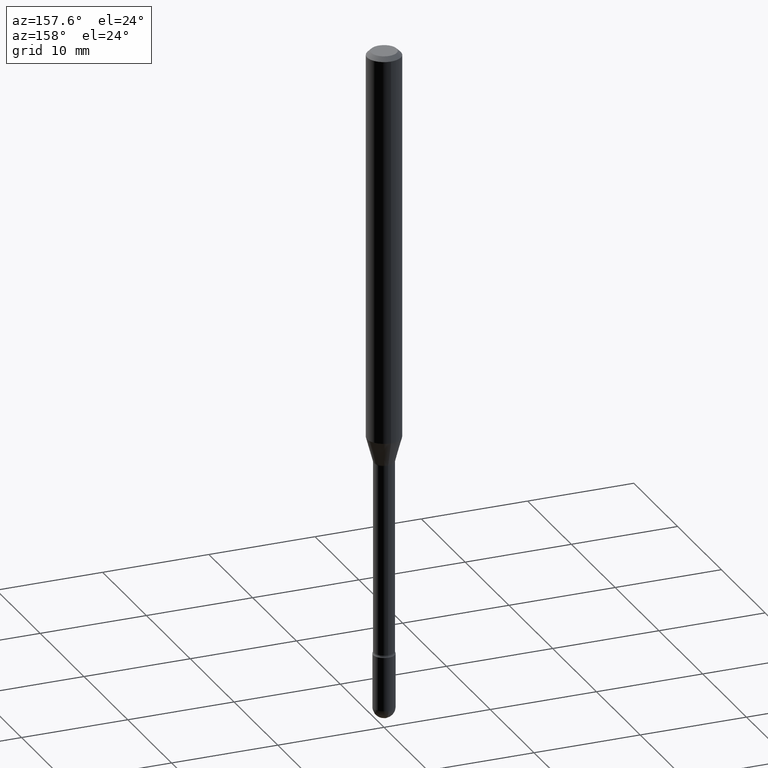
[diagram: clean part render]
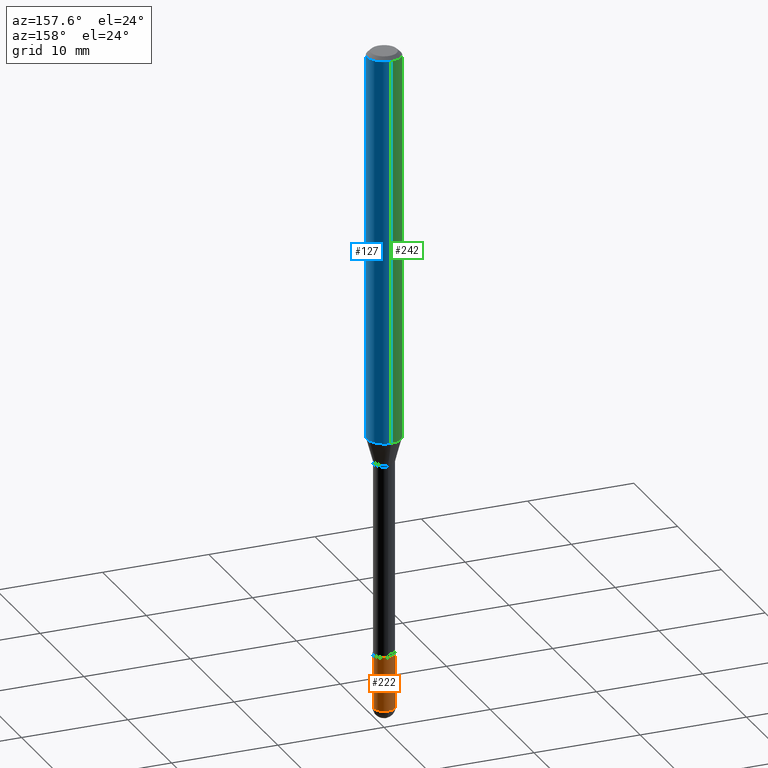
[diagram: same view with three faces highlighted in distinct colors, each labeled with its STEP entity id]
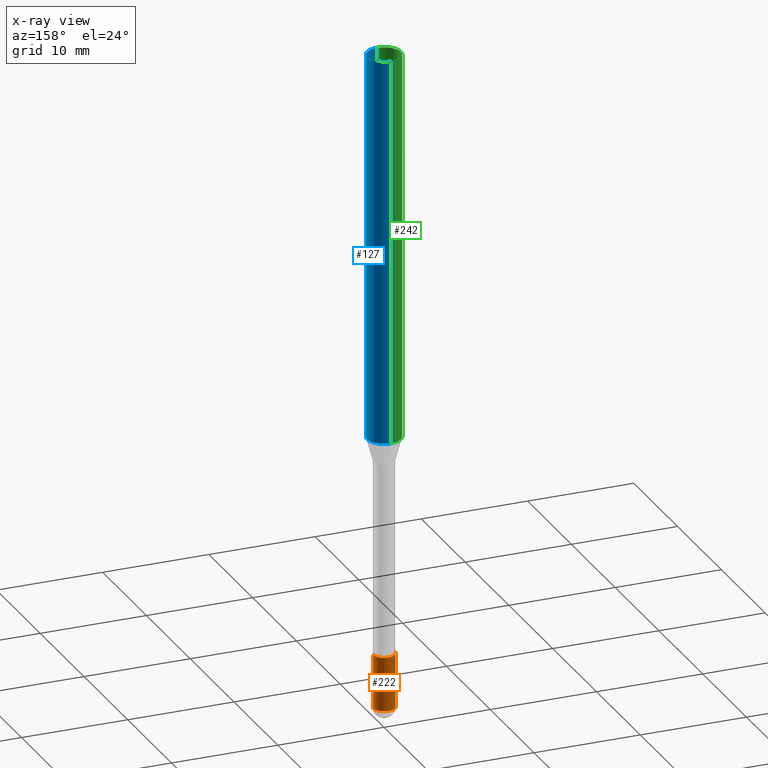
[diagram: x-ray of the same camera — body ghosted, the three highlighted faces saturated]
A machine part, auxiliary view with three faces highlighted in distinct colors.
The next image is the same camera in x-ray (body ghosted, the three faces saturated) — at least one of them is partly hidden behind the body in this view.
Their STEP definitions:

[orange] entity #222 — the highlighted cylindrical surface (edge-blend (fillet) strip) has radius 1.016 mm, axis along (-0, 0, 1).
#12 = EDGE_CURVE ( 'NONE', #300, #315, #261, .T. ) ;
#14 = CARTESIAN_POINT ( 'NONE',  ( 0.03999999999999999389, -8.519214466777273470E-15, -2.459999999999999964 ) ) ;
#57 = CARTESIAN_POINT ( 'NONE',  ( 6.015853263215436432E-29, -8.589044093554138346E-15, -2.459999999999999964 ) ) ;
#62 = CARTESIAN_POINT ( 'NONE',  ( 0.04000000000000000083, -8.170066332892960135E-15, -2.260000000000000231 ) ) ;
#63 = DIRECTION ( 'NONE',  ( 1.000000000000000000, -6.982962677686260400E-15, 0.000000000000000000 ) ) ;
#83 = VERTEX_POINT ( 'NONE', #62 ) ;
#94 = EDGE_CURVE ( 'NONE', #300, #83, #539, .T. ) ;
#115 = DIRECTION ( 'NONE',  ( -2.445468806185136877E-29, 3.491481338843145188E-15, 1.000000000000000000 ) ) ;
#128 = FACE_OUTER_BOUND ( 'NONE', #177, .T. ) ;
#134 = EDGE_CURVE ( 'NONE', #83, #186, #398, .T. ) ;
#152 = DIRECTION ( 'NONE',  ( 1.000000000000000000, -6.982962677686259611E-15, 0.000000000000000000 ) ) ;
#161 = ORIENTED_EDGE ( 'NONE', *, *, #217, .T. ) ;
#169 = ORIENTED_EDGE ( 'NONE', *, *, #134, .F. ) ;
#177 = EDGE_LOOP ( 'NONE', ( #432, #161, #169, #303, #179 ) ) ;
#178 = CARTESIAN_POINT ( 'NONE',  ( 2.793185071075109275E-16, 0.03999999999999143130, -2.460000000000000409 ) ) ;
#179 = ORIENTED_EDGE ( 'NONE', *, *, #12, .T. ) ;
#181 = AXIS2_PLACEMENT_3D ( 'NONE', #459, #335, #152 ) ;
#186 = VERTEX_POINT ( 'NONE', #391 ) ;
#187 = AXIS2_PLACEMENT_3D ( 'NONE', #218, #312, #483 ) ;
#207 = CYLINDRICAL_SURFACE ( 'NONE', #346, 0.04000000000000000083 ) ;
#217 = EDGE_CURVE ( 'NONE', #490, #186, #342, .T. ) ;
#218 = CARTESIAN_POINT ( 'NONE',  ( 6.015853263215436432E-29, -8.589044093554138346E-15, -2.459999999999999964 ) ) ;
#222 = ADVANCED_FACE ( 'NONE', ( #128 ), #207, .T. ) ;
#234 = DIRECTION ( 'NONE',  ( -2.445468806185136597E-29, 3.491481338843145583E-15, 1.000000000000000000 ) ) ;
#261 = CIRCLE ( 'NONE', #187, 0.03999999999999999389 ) ;
#300 = VERTEX_POINT ( 'NONE', #14 ) ;
#303 = ORIENTED_EDGE ( 'NONE', *, *, #94, .F. ) ;
#312 = DIRECTION ( 'NONE',  ( -2.445468806185136597E-29, 3.491481338843145583E-15, 1.000000000000000000 ) ) ;
#315 = VERTEX_POINT ( 'NONE', #178 ) ;
#318 = CIRCLE ( 'NONE', #508, 0.03999999999999999389 ) ;
#335 = DIRECTION ( 'NONE',  ( -2.445468806185136597E-29, 3.491481338843145583E-15, 1.000000000000000000 ) ) ;
#342 = LINE ( 'NONE', #433, #528 ) ;
#346 = AXIS2_PLACEMENT_3D ( 'NONE', #557, #378, #554 ) ;
#361 = CARTESIAN_POINT ( 'NONE',  ( -0.03999999999999999389, -7.955678865365783106E-15, -2.459999999999999964 ) ) ;
#378 = DIRECTION ( 'NONE',  ( -2.445468806185136597E-29, 3.491481338843145583E-15, 1.000000000000000000 ) ) ;
#391 = CARTESIAN_POINT ( 'NONE',  ( -0.04000000000000000083, -7.955678865365783106E-15, -2.260000000000000231 ) ) ;
#398 = CIRCLE ( 'NONE', #181, 0.04000000000000000083 ) ;
#432 = ORIENTED_EDGE ( 'NONE', *, *, #437, .T. ) ;
#433 = CARTESIAN_POINT ( 'NONE',  ( -0.04000000000000000083, 2.842170943040400803E-16, -1.967574036101962509E-30 ) ) ;
#437 = EDGE_CURVE ( 'NONE', #315, #490, #318, .T. ) ;
#456 = CARTESIAN_POINT ( 'NONE',  ( 0.04000000000000000083, -2.793185071074506290E-16, 1.950470710318374387E-30 ) ) ;
#459 = CARTESIAN_POINT ( 'NONE',  ( 5.526759501978408888E-29, -7.890747825785510097E-15, -2.260000000000000231 ) ) ;
#483 = DIRECTION ( 'NONE',  ( 1.000000000000000000, -6.982962677686260400E-15, 0.000000000000000000 ) ) ;
#490 = VERTEX_POINT ( 'NONE', #361 ) ;
#494 = DIRECTION ( 'NONE',  ( -2.445468806185136877E-29, 3.491481338843145188E-15, 1.000000000000000000 ) ) ;
#508 = AXIS2_PLACEMENT_3D ( 'NONE', #57, #234, #63 ) ;
#518 = VECTOR ( 'NONE', #494, 39.37007874015748143 ) ;
#528 = VECTOR ( 'NONE', #115, 39.37007874015748143 ) ;
#539 = LINE ( 'NONE', #456, #518 ) ;
#554 = DIRECTION ( 'NONE',  ( 1.000000000000000000, -6.982962677686265922E-15, 4.876176775795935793E-29 ) ) ;
#557 = CARTESIAN_POINT ( 'NONE',  ( 0.000000000000000000, 0.000000000000000000, 0.000000000000000000 ) ) ;

[blue] entity #127 — the highlighted cylindrical surface (edge-blend (fillet) strip) has radius 1.5875 mm, axis along (-0, 0, 1).
#8 = ORIENTED_EDGE ( 'NONE', *, *, #401, .T. ) ;
#9 = AXIS2_PLACEMENT_3D ( 'NONE', #409, #200, #368 ) ;
#19 = VECTOR ( 'NONE', #506, 39.37007874015748143 ) ;
#53 = AXIS2_PLACEMENT_3D ( 'NONE', #215, #305, #241 ) ;
#56 = EDGE_LOOP ( 'NONE', ( #93, #8, #521, #358 ) ) ;
#75 = CARTESIAN_POINT ( 'NONE',  ( 3.538746920994393063E-29, -5.052456671829066967E-15, -1.447071934891535294 ) ) ;
#86 = DIRECTION ( 'NONE',  ( -2.445453356995441012E-29, 3.491503462962102692E-15, 1.000000000000000000 ) ) ;
#93 = ORIENTED_EDGE ( 'NONE', *, *, #260, .T. ) ;
#111 = EDGE_CURVE ( 'NONE', #392, #216, #193, .T. ) ;
#113 = AXIS2_PLACEMENT_3D ( 'NONE', #75, #293, #243 ) ;
#127 = ADVANCED_FACE ( 'NONE', ( #326 ), #192, .T. ) ;
#131 = VERTEX_POINT ( 'NONE', #149 ) ;
#149 = CARTESIAN_POINT ( 'NONE',  ( 4.440892098500982135E-16, 0.06249999999999995143, -0.01500000000000030129 ) ) ;
#192 = CYLINDRICAL_SURFACE ( 'NONE', #9, 0.06250000000000000000 ) ;
#193 = LINE ( 'NONE', #330, #19 ) ;
#200 = DIRECTION ( 'NONE',  ( -2.445453356995440732E-29, 3.491503462962103086E-15, 1.000000000000000000 ) ) ;
#215 = CARTESIAN_POINT ( 'NONE',  ( 3.668180035493181539E-31, -5.237255194443183669E-17, -0.01500000000000008271 ) ) ;
#216 = VERTEX_POINT ( 'NONE', #385 ) ;
#225 = EDGE_CURVE ( 'NONE', #216, #131, #238, .T. ) ;
#238 = CIRCLE ( 'NONE', #53, 0.06250000000000000000 ) ;
#241 = DIRECTION ( 'NONE',  ( -6.982962677686265922E-15, -1.000000000000000000, 3.483106191921935554E-15 ) ) ;
#243 = DIRECTION ( 'NONE',  ( -6.982962677686265922E-15, -1.000000000000000000, 4.370956789862821150E-15 ) ) ;
#260 = EDGE_CURVE ( 'NONE', #392, #534, #362, .T. ) ;
#274 = VECTOR ( 'NONE', #86, 39.37007874015748143 ) ;
#293 = DIRECTION ( 'NONE',  ( -2.445453356995440732E-29, 3.491503462962103086E-15, 1.000000000000000000 ) ) ;
#305 = DIRECTION ( 'NONE',  ( -2.445453356995440732E-29, 3.491503462962103086E-15, 1.000000000000000000 ) ) ;
#308 = LINE ( 'NONE', #522, #274 ) ;
#326 = FACE_OUTER_BOUND ( 'NONE', #56, .T. ) ;
#330 = CARTESIAN_POINT ( 'NONE',  ( -4.364351673553916201E-16, -0.06250000000000000000, 6.962923653263774815E-16 ) ) ;
#334 = CARTESIAN_POINT ( 'NONE',  ( 4.440892098500977205E-16, 0.06249999999999491379, -1.447071934891535516 ) ) ;
#358 = ORIENTED_EDGE ( 'NONE', *, *, #111, .F. ) ;
#362 = CIRCLE ( 'NONE', #113, 0.06250000000000000000 ) ;
#368 = DIRECTION ( 'NONE',  ( -6.982962677686265922E-15, -1.000000000000000000, 3.491503462962103481E-15 ) ) ;
#385 = CARTESIAN_POINT ( 'NONE',  ( -4.364351673553912750E-16, -0.06250000000000005551, -0.01499999999999986587 ) ) ;
#392 = VERTEX_POINT ( 'NONE', #491 ) ;
#401 = EDGE_CURVE ( 'NONE', #534, #131, #308, .T. ) ;
#409 = CARTESIAN_POINT ( 'NONE',  ( -1.169113584055446105E-44, 1.669184350826100908E-30, 4.780733988912460139E-16 ) ) ;
#491 = CARTESIAN_POINT ( 'NONE',  ( -4.364351673553565651E-16, -0.06250000000000509315, -1.447071934891535072 ) ) ;
#506 = DIRECTION ( 'NONE',  ( -2.445453356995441012E-29, 3.491503462962102692E-15, 1.000000000000000000 ) ) ;
#521 = ORIENTED_EDGE ( 'NONE', *, *, #225, .F. ) ;
#522 = CARTESIAN_POINT ( 'NONE',  ( 4.440892098500625669E-16, 0.06250000000000000000, 2.598544324561146450E-16 ) ) ;
#534 = VERTEX_POINT ( 'NONE', #334 ) ;

[green] entity #242 — the highlighted cylindrical surface (edge-blend (fillet) strip) has radius 1.5875 mm, axis along (-0, 0, 1).
#3 = ORIENTED_EDGE ( 'NONE', *, *, #82, .T. ) ;
#5 = CIRCLE ( 'NONE', #114, 0.06250000000000000000 ) ;
#13 = DIRECTION ( 'NONE',  ( -6.982962677686265922E-15, -1.000000000000000000, 4.370956789862821150E-15 ) ) ;
#16 = DIRECTION ( 'NONE',  ( -2.445453356995440732E-29, 3.491503462962103086E-15, 1.000000000000000000 ) ) ;
#19 = VECTOR ( 'NONE', #506, 39.37007874015748143 ) ;
#31 = AXIS2_PLACEMENT_3D ( 'NONE', #66, #153, #13 ) ;
#38 = CYLINDRICAL_SURFACE ( 'NONE', #436, 0.06250000000000000000 ) ;
#66 = CARTESIAN_POINT ( 'NONE',  ( 3.538746920994393063E-29, -5.052456671829066967E-15, -1.447071934891535294 ) ) ;
#81 = DIRECTION ( 'NONE',  ( -2.445453356995440732E-29, 3.491503462962103086E-15, 1.000000000000000000 ) ) ;
#82 = EDGE_CURVE ( 'NONE', #534, #392, #327, .T. ) ;
#86 = DIRECTION ( 'NONE',  ( -2.445453356995441012E-29, 3.491503462962102692E-15, 1.000000000000000000 ) ) ;
#90 = CARTESIAN_POINT ( 'NONE',  ( 3.668180035493181539E-31, -5.237255194443183669E-17, -0.01500000000000008271 ) ) ;
#101 = EDGE_LOOP ( 'NONE', ( #118, #3, #402, #439 ) ) ;
#111 = EDGE_CURVE ( 'NONE', #392, #216, #193, .T. ) ;
#114 = AXIS2_PLACEMENT_3D ( 'NONE', #90, #16, #525 ) ;
#118 = ORIENTED_EDGE ( 'NONE', *, *, #401, .F. ) ;
#131 = VERTEX_POINT ( 'NONE', #149 ) ;
#149 = CARTESIAN_POINT ( 'NONE',  ( 4.440892098500982135E-16, 0.06249999999999995143, -0.01500000000000030129 ) ) ;
#153 = DIRECTION ( 'NONE',  ( -2.445453356995440732E-29, 3.491503462962103086E-15, 1.000000000000000000 ) ) ;
#193 = LINE ( 'NONE', #330, #19 ) ;
#216 = VERTEX_POINT ( 'NONE', #385 ) ;
#242 = ADVANCED_FACE ( 'NONE', ( #510 ), #38, .T. ) ;
#274 = VECTOR ( 'NONE', #86, 39.37007874015748143 ) ;
#308 = LINE ( 'NONE', #522, #274 ) ;
#327 = CIRCLE ( 'NONE', #31, 0.06250000000000000000 ) ;
#330 = CARTESIAN_POINT ( 'NONE',  ( -4.364351673553916201E-16, -0.06250000000000000000, 6.962923653263774815E-16 ) ) ;
#334 = CARTESIAN_POINT ( 'NONE',  ( 4.440892098500977205E-16, 0.06249999999999491379, -1.447071934891535516 ) ) ;
#385 = CARTESIAN_POINT ( 'NONE',  ( -4.364351673553912750E-16, -0.06250000000000005551, -0.01499999999999986587 ) ) ;
#392 = VERTEX_POINT ( 'NONE', #491 ) ;
#401 = EDGE_CURVE ( 'NONE', #534, #131, #308, .T. ) ;
#402 = ORIENTED_EDGE ( 'NONE', *, *, #111, .T. ) ;
#436 = AXIS2_PLACEMENT_3D ( 'NONE', #559, #81, #512 ) ;
#439 = ORIENTED_EDGE ( 'NONE', *, *, #453, .F. ) ;
#453 = EDGE_CURVE ( 'NONE', #131, #216, #5, .T. ) ;
#491 = CARTESIAN_POINT ( 'NONE',  ( -4.364351673553565651E-16, -0.06250000000000509315, -1.447071934891535072 ) ) ;
#506 = DIRECTION ( 'NONE',  ( -2.445453356995441012E-29, 3.491503462962102692E-15, 1.000000000000000000 ) ) ;
#510 = FACE_OUTER_BOUND ( 'NONE', #101, .T. ) ;
#512 = DIRECTION ( 'NONE',  ( -6.982962677686265922E-15, -1.000000000000000000, 3.491503462962103481E-15 ) ) ;
#522 = CARTESIAN_POINT ( 'NONE',  ( 4.440892098500625669E-16, 0.06250000000000000000, 2.598544324561146450E-16 ) ) ;
#525 = DIRECTION ( 'NONE',  ( -6.982962677686265922E-15, -1.000000000000000000, 3.483106191921935554E-15 ) ) ;
#534 = VERTEX_POINT ( 'NONE', #334 ) ;
#559 = CARTESIAN_POINT ( 'NONE',  ( -1.169113584055446105E-44, 1.669184350826100908E-30, 4.780733988912460139E-16 ) ) ;